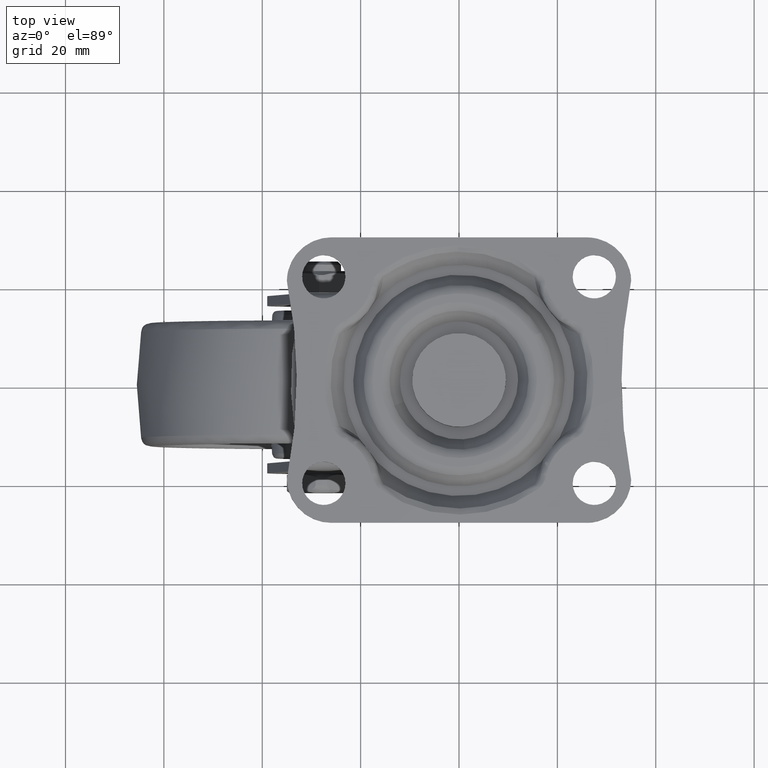
[diagram: clean part render]
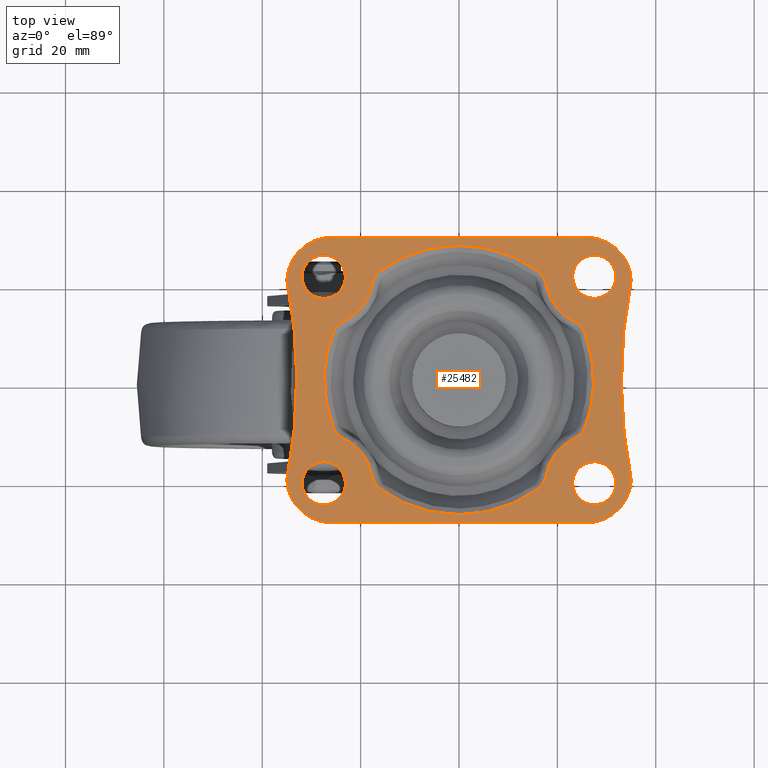
[diagram: same view with one face highlighted and labeled with its STEP entity id]
A machine part, top view. The second image highlights one B-rep face of the part: STEP entity #25482.
In plain terms, the highlighted face is a freeform B-spline surface patch.
Its self-contained STEP definition (entity closure, byte-faithful):
#13530=CARTESIAN_POINT('',(-26.953836778245702,16.634028559964811,-1.450307E-017));
#13531=VERTEX_POINT('',#13530);
#13537=CARTESIAN_POINT('',(-23.099999900000000,21.0,0.0));
#13538=VERTEX_POINT('',#13537);
#13539=CARTESIAN_POINT('',(-26.953836778245702,16.634028559964808,-1.450307E-017));
#13540=CARTESIAN_POINT('',(-23.099999900000007,17.116126071410257,0.0));
#13541=CARTESIAN_POINT('',(-23.099999900000000,21.0,0.0));
#13549=(BOUNDED_CURVE()B_SPLINE_CURVE(2,(#13539,#13540,#13541),.UNSPECIFIED.,.F.,.U.)B_SPLINE_CURVE_WITH_KNOTS((3,3),(0.271473928985399,0.500000000000000),.UNSPECIFIED.)CURVE()GEOMETRIC_REPRESENTATION_ITEM()RATIONAL_B_SPLINE_CURVE((0.954005430246196,0.732265053910968,1.0))REPRESENTATION_ITEM(''));
#13550=EDGE_CURVE('',#13531,#13538,#13549,.T.);
#13552=CARTESIAN_POINT('',(-27.538396757451380,25.399832561475169,-1.040834E-017));
#13553=VERTEX_POINT('',#13552);
#13554=CARTESIAN_POINT('',(-23.099999900000000,21.0,0.0));
#13555=CARTESIAN_POINT('',(-23.099999900000011,25.400000099999993,0.0));
#13556=CARTESIAN_POINT('',(-27.500000000000000,25.400000100000000,0.0));
#13557=CARTESIAN_POINT('',(-27.519198744433332,25.400000099999993,0.0));
#13558=CARTESIAN_POINT('',(-27.538396757451384,25.399832561475172,-1.040834E-017));
#13566=(BOUNDED_CURVE()B_SPLINE_CURVE(2,(#13554,#13555,#13556,#13557,#13558),.UNSPECIFIED.,.F.,.U.)B_SPLINE_CURVE_WITH_KNOTS((3,2,3),(0.500000000000000,0.750000000000000,0.751539894365884),.UNSPECIFIED.)CURVE()GEOMETRIC_REPRESENTATION_ITEM()RATIONAL_B_SPLINE_CURVE((1.0,0.707106781186548,1.0,0.998195901530174,0.996414028028901))REPRESENTATION_ITEM(''));
#13567=EDGE_CURVE('',#13538,#13553,#13566,.T.);
#13647=CARTESIAN_POINT('',(-31.900000099999989,21.0,0.0));
#13648=VERTEX_POINT('',#13647);
#13649=CARTESIAN_POINT('',(-27.538396757451380,25.399832561475176,-1.040834E-017));
#13650=CARTESIAN_POINT('',(-31.900000099999993,25.361769424983912,0.0));
#13651=CARTESIAN_POINT('',(-31.900000099999989,21.0,0.0));
#13659=(BOUNDED_CURVE()B_SPLINE_CURVE(2,(#13649,#13650,#13651),.UNSPECIFIED.,.F.,.U.)B_SPLINE_CURVE_WITH_KNOTS((3,3),(0.751539894365884,1.0),.UNSPECIFIED.)CURVE()GEOMETRIC_REPRESENTATION_ITEM()RATIONAL_B_SPLINE_CURVE((0.996414028028903,0.708910879656373,1.0))REPRESENTATION_ITEM(''));
#13660=EDGE_CURVE('',#13553,#13648,#13659,.T.);
#13662=CARTESIAN_POINT('',(-31.900000099999989,21.0,0.0));
#13663=CARTESIAN_POINT('',(-31.900000099999993,16.599999900000011,0.0));
#13664=CARTESIAN_POINT('',(-27.500000000000000,16.599999900000011,0.0));
#13665=CARTESIAN_POINT('',(-27.225858312429651,16.599999900000014,0.0));
#13666=CARTESIAN_POINT('',(-26.953836778245702,16.634028559964808,-1.450307E-017));
#13674=(BOUNDED_CURVE()B_SPLINE_CURVE(2,(#13662,#13663,#13664,#13665,#13666),.UNSPECIFIED.,.F.,.U.)B_SPLINE_CURVE_WITH_KNOTS((3,2,3),(0.0,0.250000000000000,0.271473928985399),.UNSPECIFIED.)CURVE()GEOMETRIC_REPRESENTATION_ITEM()RATIONAL_B_SPLINE_CURVE((1.0,0.707106781186548,1.0,0.974841727275580,0.954005430246196))REPRESENTATION_ITEM(''));
#13675=EDGE_CURVE('',#13648,#13531,#13674,.T.);
#13716=CARTESIAN_POINT('',(28.046153221754299,16.634028559964811,-1.450307E-017));
#13717=VERTEX_POINT('',#13716);
#13723=CARTESIAN_POINT('',(31.899990099999989,21.0,0.0));
#13724=VERTEX_POINT('',#13723);
#13725=CARTESIAN_POINT('',(28.046153221754292,16.634028559964808,-1.450307E-017));
#13726=CARTESIAN_POINT('',(31.899990099999986,17.116126071410257,0.0));
#13727=CARTESIAN_POINT('',(31.899990099999989,21.0,0.0));
#13735=(BOUNDED_CURVE()B_SPLINE_CURVE(2,(#13725,#13726,#13727),.UNSPECIFIED.,.F.,.U.)B_SPLINE_CURVE_WITH_KNOTS((3,3),(0.271473928985399,0.500000000000000),.UNSPECIFIED.)CURVE()GEOMETRIC_REPRESENTATION_ITEM()RATIONAL_B_SPLINE_CURVE((0.954005430246196,0.732265053910968,1.0))REPRESENTATION_ITEM(''));
#13736=EDGE_CURVE('',#13717,#13724,#13735,.T.);
#13738=CARTESIAN_POINT('',(27.461593242548620,25.399832561475179,-1.040834E-017));
#13739=VERTEX_POINT('',#13738);
#13740=CARTESIAN_POINT('',(31.899990099999989,21.0,0.0));
#13741=CARTESIAN_POINT('',(31.899990099999997,25.400000099999993,0.0));
#13742=CARTESIAN_POINT('',(27.499990000000000,25.400000100000000,0.0));
#13743=CARTESIAN_POINT('',(27.480791255566668,25.400000099999993,0.0));
#13744=CARTESIAN_POINT('',(27.461593242548624,25.399832561475179,-1.040834E-017));
#13752=(BOUNDED_CURVE()B_SPLINE_CURVE(2,(#13740,#13741,#13742,#13743,#13744),.UNSPECIFIED.,.F.,.U.)B_SPLINE_CURVE_WITH_KNOTS((3,2,3),(0.500000000000000,0.750000000000000,0.751539894365884),.UNSPECIFIED.)CURVE()GEOMETRIC_REPRESENTATION_ITEM()RATIONAL_B_SPLINE_CURVE((1.0,0.707106781186548,1.0,0.998195901530174,0.996414028028901))REPRESENTATION_ITEM(''));
#13753=EDGE_CURVE('',#13724,#13739,#13752,.T.);
#13833=CARTESIAN_POINT('',(23.099989900000001,21.0,0.0));
#13834=VERTEX_POINT('',#13833);
#13835=CARTESIAN_POINT('',(27.461593242548624,25.399832561475176,-1.040834E-017));
#13836=CARTESIAN_POINT('',(23.099989900000004,25.361769424983923,0.0));
#13837=CARTESIAN_POINT('',(23.099989900000001,21.0,0.0));
#13845=(BOUNDED_CURVE()B_SPLINE_CURVE(2,(#13835,#13836,#13837),.UNSPECIFIED.,.F.,.U.)B_SPLINE_CURVE_WITH_KNOTS((3,3),(0.751539894365883,1.0),.UNSPECIFIED.)CURVE()GEOMETRIC_REPRESENTATION_ITEM()RATIONAL_B_SPLINE_CURVE((0.996414028028903,0.708910879656373,1.0))REPRESENTATION_ITEM(''));
#13846=EDGE_CURVE('',#13739,#13834,#13845,.T.);
#13848=CARTESIAN_POINT('',(23.099989900000001,21.0,0.0));
#13849=CARTESIAN_POINT('',(23.099989900000004,16.599999900000011,0.0));
#13850=CARTESIAN_POINT('',(27.499990000000000,16.599999900000011,0.0));
#13851=CARTESIAN_POINT('',(27.774131687570346,16.599999900000014,0.0));
#13852=CARTESIAN_POINT('',(28.046153221754292,16.634028559964808,-1.450307E-017));
#13860=(BOUNDED_CURVE()B_SPLINE_CURVE(2,(#13848,#13849,#13850,#13851,#13852),.UNSPECIFIED.,.F.,.U.)B_SPLINE_CURVE_WITH_KNOTS((3,2,3),(0.0,0.250000000000000,0.271473928985399),.UNSPECIFIED.)CURVE()GEOMETRIC_REPRESENTATION_ITEM()RATIONAL_B_SPLINE_CURVE((1.0,0.707106781186548,1.0,0.974841727275580,0.954005430246196))REPRESENTATION_ITEM(''));
#13861=EDGE_CURVE('',#13834,#13717,#13860,.T.);
#14088=CARTESIAN_POINT('',(28.046153221754299,-25.365971440035189,-1.450307E-017));
#14089=VERTEX_POINT('',#14088);
#14095=CARTESIAN_POINT('',(31.899990099999989,-21.0,0.0));
#14096=VERTEX_POINT('',#14095);
#14097=CARTESIAN_POINT('',(28.046153221754292,-25.365971440035189,-1.450307E-017));
#14098=CARTESIAN_POINT('',(31.899990099999986,-24.883873928589743,0.0));
#14099=CARTESIAN_POINT('',(31.899990099999989,-21.0,0.0));
#14107=(BOUNDED_CURVE()B_SPLINE_CURVE(2,(#14097,#14098,#14099),.UNSPECIFIED.,.F.,.U.)B_SPLINE_CURVE_WITH_KNOTS((3,3),(0.271473928985399,0.500000000000000),.UNSPECIFIED.)CURVE()GEOMETRIC_REPRESENTATION_ITEM()RATIONAL_B_SPLINE_CURVE((0.954005430246196,0.732265053910968,1.0))REPRESENTATION_ITEM(''));
#14108=EDGE_CURVE('',#14089,#14096,#14107,.T.);
#14110=CARTESIAN_POINT('',(27.461593242548620,-16.600167438524831,-1.040834E-017));
#14111=VERTEX_POINT('',#14110);
#14112=CARTESIAN_POINT('',(31.899990099999989,-21.0,0.0));
#14113=CARTESIAN_POINT('',(31.899990099999997,-16.599999900000011,0.0));
#14114=CARTESIAN_POINT('',(27.499990000000000,-16.599999900000011,0.0));
#14115=CARTESIAN_POINT('',(27.480791255566668,-16.599999900000011,0.0));
#14116=CARTESIAN_POINT('',(27.461593242548624,-16.600167438524824,-1.040834E-017));
#14124=(BOUNDED_CURVE()B_SPLINE_CURVE(2,(#14112,#14113,#14114,#14115,#14116),.UNSPECIFIED.,.F.,.U.)B_SPLINE_CURVE_WITH_KNOTS((3,2,3),(0.500000000000000,0.750000000000000,0.751539894365884),.UNSPECIFIED.)CURVE()GEOMETRIC_REPRESENTATION_ITEM()RATIONAL_B_SPLINE_CURVE((1.0,0.707106781186548,1.0,0.998195901530174,0.996414028028901))REPRESENTATION_ITEM(''));
#14125=EDGE_CURVE('',#14096,#14111,#14124,.T.);
#14205=CARTESIAN_POINT('',(23.099989900000001,-21.0,0.0));
#14206=VERTEX_POINT('',#14205);
#14207=CARTESIAN_POINT('',(27.461593242548624,-16.600167438524828,-1.040834E-017));
#14208=CARTESIAN_POINT('',(23.099989900000004,-16.638230575016085,0.0));
#14209=CARTESIAN_POINT('',(23.099989900000001,-21.0,0.0));
#14217=(BOUNDED_CURVE()B_SPLINE_CURVE(2,(#14207,#14208,#14209),.UNSPECIFIED.,.F.,.U.)B_SPLINE_CURVE_WITH_KNOTS((3,3),(0.751539894365883,1.0),.UNSPECIFIED.)CURVE()GEOMETRIC_REPRESENTATION_ITEM()RATIONAL_B_SPLINE_CURVE((0.996414028028903,0.708910879656373,1.0))REPRESENTATION_ITEM(''));
#14218=EDGE_CURVE('',#14111,#14206,#14217,.T.);
#14220=CARTESIAN_POINT('',(23.099989900000001,-21.0,0.0));
#14221=CARTESIAN_POINT('',(23.099989900000004,-25.400000099999993,0.0));
#14222=CARTESIAN_POINT('',(27.499990000000000,-25.400000100000000,0.0));
#14223=CARTESIAN_POINT('',(27.774131687570346,-25.400000099999993,0.0));
#14224=CARTESIAN_POINT('',(28.046153221754292,-25.365971440035189,-1.450307E-017));
#14232=(BOUNDED_CURVE()B_SPLINE_CURVE(2,(#14220,#14221,#14222,#14223,#14224),.UNSPECIFIED.,.F.,.U.)B_SPLINE_CURVE_WITH_KNOTS((3,2,3),(0.0,0.250000000000000,0.271473928985399),.UNSPECIFIED.)CURVE()GEOMETRIC_REPRESENTATION_ITEM()RATIONAL_B_SPLINE_CURVE((1.0,0.707106781186548,1.0,0.974841727275580,0.954005430246196))REPRESENTATION_ITEM(''));
#14233=EDGE_CURVE('',#14206,#14089,#14232,.T.);
#14274=CARTESIAN_POINT('',(-26.953836778245702,-25.365971440035189,-1.450307E-017));
#14275=VERTEX_POINT('',#14274);
#14281=CARTESIAN_POINT('',(-23.099999900000000,-21.0,0.0));
#14282=VERTEX_POINT('',#14281);
#14283=CARTESIAN_POINT('',(-26.953836778245702,-25.365971440035189,-1.450307E-017));
#14284=CARTESIAN_POINT('',(-23.099999900000007,-24.883873928589743,0.0));
#14285=CARTESIAN_POINT('',(-23.099999900000000,-21.0,0.0));
#14293=(BOUNDED_CURVE()B_SPLINE_CURVE(2,(#14283,#14284,#14285),.UNSPECIFIED.,.F.,.U.)B_SPLINE_CURVE_WITH_KNOTS((3,3),(0.271473928985399,0.500000000000000),.UNSPECIFIED.)CURVE()GEOMETRIC_REPRESENTATION_ITEM()RATIONAL_B_SPLINE_CURVE((0.954005430246196,0.732265053910968,1.0))REPRESENTATION_ITEM(''));
#14294=EDGE_CURVE('',#14275,#14282,#14293,.T.);
#14296=CARTESIAN_POINT('',(-27.538396757451370,-16.600167438524831,-1.040834E-017));
#14297=VERTEX_POINT('',#14296);
#14298=CARTESIAN_POINT('',(-23.099999900000000,-21.0,0.0));
#14299=CARTESIAN_POINT('',(-23.099999900000011,-16.599999900000011,0.0));
#14300=CARTESIAN_POINT('',(-27.500000000000000,-16.599999900000011,0.0));
#14301=CARTESIAN_POINT('',(-27.519198744433332,-16.599999900000011,0.0));
#14302=CARTESIAN_POINT('',(-27.538396757451373,-16.600167438524824,-1.040834E-017));
#14310=(BOUNDED_CURVE()B_SPLINE_CURVE(2,(#14298,#14299,#14300,#14301,#14302),.UNSPECIFIED.,.F.,.U.)B_SPLINE_CURVE_WITH_KNOTS((3,2,3),(0.500000000000000,0.750000000000000,0.751539894365884),.UNSPECIFIED.)CURVE()GEOMETRIC_REPRESENTATION_ITEM()RATIONAL_B_SPLINE_CURVE((1.0,0.707106781186548,1.0,0.998195901530174,0.996414028028901))REPRESENTATION_ITEM(''));
#14311=EDGE_CURVE('',#14282,#14297,#14310,.T.);
#14391=CARTESIAN_POINT('',(-31.900000099999989,-21.0,0.0));
#14392=VERTEX_POINT('',#14391);
#14393=CARTESIAN_POINT('',(-27.538396757451370,-16.600167438524831,-1.040834E-017));
#14394=CARTESIAN_POINT('',(-31.900000099999993,-16.638230575016088,0.0));
#14395=CARTESIAN_POINT('',(-31.900000099999989,-21.0,0.0));
#14403=(BOUNDED_CURVE()B_SPLINE_CURVE(2,(#14393,#14394,#14395),.UNSPECIFIED.,.F.,.U.)B_SPLINE_CURVE_WITH_KNOTS((3,3),(0.751539894365883,1.0),.UNSPECIFIED.)CURVE()GEOMETRIC_REPRESENTATION_ITEM()RATIONAL_B_SPLINE_CURVE((0.996414028028903,0.708910879656373,1.0))REPRESENTATION_ITEM(''));
#14404=EDGE_CURVE('',#14297,#14392,#14403,.T.);
#14406=CARTESIAN_POINT('',(-31.900000099999989,-21.0,0.0));
#14407=CARTESIAN_POINT('',(-31.900000099999993,-25.400000099999993,0.0));
#14408=CARTESIAN_POINT('',(-27.500000000000000,-25.400000100000000,0.0));
#14409=CARTESIAN_POINT('',(-27.225858312429651,-25.400000099999993,0.0));
#14410=CARTESIAN_POINT('',(-26.953836778245702,-25.365971440035189,-1.450307E-017));
#14418=(BOUNDED_CURVE()B_SPLINE_CURVE(2,(#14406,#14407,#14408,#14409,#14410),.UNSPECIFIED.,.F.,.U.)B_SPLINE_CURVE_WITH_KNOTS((3,2,3),(0.0,0.250000000000000,0.271473928985399),.UNSPECIFIED.)CURVE()GEOMETRIC_REPRESENTATION_ITEM()RATIONAL_B_SPLINE_CURVE((1.0,0.707106781186548,1.0,0.974841727275580,0.954005430246196))REPRESENTATION_ITEM(''));
#14419=EDGE_CURVE('',#14392,#14275,#14418,.T.);
#21813=CARTESIAN_POINT('',(-34.996665220768847,20.244611880344650,0.0));
#21814=VERTEX_POINT('',#21813);
#21835=CARTESIAN_POINT('',(-34.996665220768747,-20.244611880344198,0.0));
#21836=VERTEX_POINT('',#21835);
#21842=CARTESIAN_POINT('',(-34.996665220768847,-20.244611880344181,0.0));
#21843=CARTESIAN_POINT('',(-30.957251078704829,2.146061E-013,0.0));
#21844=CARTESIAN_POINT('',(-34.996665220768939,20.244611880344610,0.0));
#21852=(BOUNDED_CURVE()B_SPLINE_CURVE(2,(#21842,#21843,#21844),.UNSPECIFIED.,.F.,.U.)CURVE()GEOMETRIC_REPRESENTATION_ITEM()QUASI_UNIFORM_CURVE()RATIONAL_B_SPLINE_CURVE((1.0,0.980669150357168,1.0))REPRESENTATION_ITEM(''));
#21853=EDGE_CURVE('',#21836,#21814,#21852,.T.);
#21874=CARTESIAN_POINT('',(-25.999990000000000,-29.0,0.0));
#21875=VERTEX_POINT('',#21874);
#21881=CARTESIAN_POINT('',(-34.996665220768762,-20.244611880344198,0.0));
#21882=CARTESIAN_POINT('',(-34.758613729685891,-29.000000000000004,0.0));
#21883=CARTESIAN_POINT('',(-25.999990000000000,-29.0,0.0));
#21891=(BOUNDED_CURVE()B_SPLINE_CURVE(2,(#21881,#21882,#21883),.UNSPECIFIED.,.F.,.U.)CURVE()GEOMETRIC_REPRESENTATION_ITEM()QUASI_UNIFORM_CURVE()RATIONAL_B_SPLINE_CURVE((1.0,0.716651623111265,1.0))REPRESENTATION_ITEM(''));
#21892=EDGE_CURVE('',#21836,#21875,#21891,.T.);
#21923=CARTESIAN_POINT('',(25.999993141592750,-28.999999999999449,0.0));
#21924=VERTEX_POINT('',#21923);
#21930=CARTESIAN_POINT('',(25.999993141592750,-28.999999999999449,0.0));
#21931=CARTESIAN_POINT('',(-25.999990000000000,-29.0,0.0));
#21932=QUASI_UNIFORM_CURVE('',1,(#21930,#21931),.UNSPECIFIED.,.F.,.U.);
#21933=EDGE_CURVE('',#21924,#21875,#21932,.T.);
#21955=CARTESIAN_POINT('',(34.996665220768847,-20.244611880344600,0.0));
#21956=VERTEX_POINT('',#21955);
#21962=CARTESIAN_POINT('',(25.999993141592750,-28.999999999999449,0.0));
#21963=CARTESIAN_POINT('',(34.758613812811845,-28.999996942663991,0.0));
#21964=CARTESIAN_POINT('',(34.996665220768847,-20.244611880344600,0.0));
#21972=(BOUNDED_CURVE()B_SPLINE_CURVE(2,(#21962,#21963,#21964),.UNSPECIFIED.,.F.,.U.)CURVE()GEOMETRIC_REPRESENTATION_ITEM()QUASI_UNIFORM_CURVE()RATIONAL_B_SPLINE_CURVE((1.0,0.716651744836003,1.0))REPRESENTATION_ITEM(''));
#21973=EDGE_CURVE('',#21924,#21956,#21972,.T.);
#22021=CARTESIAN_POINT('',(34.996665220768747,20.244611880344198,0.0));
#22022=VERTEX_POINT('',#22021);
#22028=CARTESIAN_POINT('',(34.996665220768747,20.244611880344198,0.0));
#22029=CARTESIAN_POINT('',(30.957251078704825,-1.627309E-013,0.0));
#22030=CARTESIAN_POINT('',(34.996665220768847,-20.244611880344600,0.0));
#22038=(BOUNDED_CURVE()B_SPLINE_CURVE(2,(#22028,#22029,#22030),.UNSPECIFIED.,.F.,.U.)CURVE()GEOMETRIC_REPRESENTATION_ITEM()QUASI_UNIFORM_CURVE()RATIONAL_B_SPLINE_CURVE((1.0,0.980669150357169,1.0))REPRESENTATION_ITEM(''));
#22039=EDGE_CURVE('',#22022,#21956,#22038,.T.);
#22061=CARTESIAN_POINT('',(25.999992827433399,28.999999999999549,0.0));
#22062=VERTEX_POINT('',#22061);
#22068=CARTESIAN_POINT('',(34.996665220768762,20.244611880344198,0.0));
#22069=CARTESIAN_POINT('',(34.758613804499589,28.999997248397619,0.0));
#22070=CARTESIAN_POINT('',(25.999992827433399,28.999999999999549,0.0));
#22078=(BOUNDED_CURVE()B_SPLINE_CURVE(2,(#22068,#22069,#22070),.UNSPECIFIED.,.F.,.U.)CURVE()GEOMETRIC_REPRESENTATION_ITEM()QUASI_UNIFORM_CURVE()RATIONAL_B_SPLINE_CURVE((1.0,0.716651732663513,1.0))REPRESENTATION_ITEM(''));
#22079=EDGE_CURVE('',#22022,#22062,#22078,.T.);
#22110=CARTESIAN_POINT('',(-25.999990000000000,29.0,0.0));
#22111=VERTEX_POINT('',#22110);
#22117=CARTESIAN_POINT('',(-25.999990000000000,29.0,0.0));
#22118=CARTESIAN_POINT('',(25.999992827433399,28.999999999999549,0.0));
#22119=QUASI_UNIFORM_CURVE('',1,(#22117,#22118),.UNSPECIFIED.,.F.,.U.);
#22120=EDGE_CURVE('',#22111,#22062,#22119,.T.);
#22141=CARTESIAN_POINT('',(-25.999990000000000,29.0,0.0));
#22142=CARTESIAN_POINT('',(-34.758613729685443,29.000000000000004,0.0));
#22143=CARTESIAN_POINT('',(-34.996665220768740,20.244611880344650,0.0));
#22151=(BOUNDED_CURVE()B_SPLINE_CURVE(2,(#22141,#22142,#22143),.UNSPECIFIED.,.F.,.U.)CURVE()GEOMETRIC_REPRESENTATION_ITEM()QUASI_UNIFORM_CURVE()RATIONAL_B_SPLINE_CURVE((1.0,0.716651623111283,1.0))REPRESENTATION_ITEM(''));
#22152=EDGE_CURVE('',#22111,#21814,#22151,.T.);
#22412=CARTESIAN_POINT('',(-25.591212590839000,-9.715728735231270,0.0));
#22413=VERTEX_POINT('',#22412);
#22414=CARTESIAN_POINT('',(-23.170474890031201,-12.096898613283740,0.0));
#22415=VERTEX_POINT('',#22414);
#22416=CARTESIAN_POINT('',(-25.591212590839000,-9.715728735231270,0.0));
#22417=CARTESIAN_POINT('',(-25.565182702811811,-9.784291415023242,0.0));
#22418=CARTESIAN_POINT('',(-25.536709832404579,-9.851804138086944,0.0));
#22419=CARTESIAN_POINT('',(-25.475167638890522,-9.984854098644947,0.0));
#22420=CARTESIAN_POINT('',(-25.442148249014270,-10.050258242234991,0.0));
#22421=CARTESIAN_POINT('',(-25.337513298018621,-10.242072836035240,0.0));
#22422=CARTESIAN_POINT('',(-25.260105726351600,-10.364643127830741,0.0));
#22423=CARTESIAN_POINT('',(-25.091959404021090,-10.600538227247069,0.0));
#22424=CARTESIAN_POINT('',(-25.001208519785379,-10.713854619951990,0.0));
#22425=CARTESIAN_POINT('',(-24.855984655612829,-10.877519853928630,0.0));
#22426=CARTESIAN_POINT('',(-24.805960628355969,-10.931105387296890,0.0));
#22427=CARTESIAN_POINT('',(-24.704089588477810,-11.035150971774550,0.0));
#22428=CARTESIAN_POINT('',(-24.652128740227010,-11.085748899533289,0.0));
#22429=CARTESIAN_POINT('',(-24.387568897670651,-11.332129838167329,0.0));
#22430=CARTESIAN_POINT('',(-24.160888674477789,-11.508344635965431,0.0));
#22431=CARTESIAN_POINT('',(-23.683304163680141,-11.827110859010650,0.0));
#22432=CARTESIAN_POINT('',(-23.432327257452599,-11.969561368585250,0.0));
#22433=CARTESIAN_POINT('',(-23.170474890031201,-12.096898613283740,0.0));
#22434=B_SPLINE_CURVE_WITH_KNOTS('',3,(#22416,#22417,#22418,#22419,#22420,#22421,#22422,#22423,#22424,#22425,#22426,#22427,#22428,#22429,#22430,#22431,#22432,#22433),.UNSPECIFIED.,.F.,.U.,(4,2,2,2,2,2,2,2,4),(0.0,0.062500000000000,0.124999999999999,0.249999999999999,0.375000000000000,0.437499999999999,0.499999999999999,0.749999999999999,1.0),.UNSPECIFIED.);
#22435=EDGE_CURVE('',#22413,#22415,#22434,.T.);
#22486=CARTESIAN_POINT('',(-25.591212590838950,9.715728735231290,0.0));
#22487=VERTEX_POINT('',#22486);
#22501=CARTESIAN_POINT('',(-25.591212590838989,-9.715728735231279,0.0));
#22502=CARTESIAN_POINT('',(-29.279798449032743,8.340550E-015,0.0));
#22503=CARTESIAN_POINT('',(-25.591212590838978,9.715728735231286,0.0));
#22511=(BOUNDED_CURVE()B_SPLINE_CURVE(2,(#22501,#22502,#22503),.UNSPECIFIED.,.F.,.U.)CURVE()GEOMETRIC_REPRESENTATION_ITEM()QUASI_UNIFORM_CURVE()RATIONAL_B_SPLINE_CURVE((1.0,0.934891886720673,1.0))REPRESENTATION_ITEM(''));
#22512=EDGE_CURVE('',#22413,#22487,#22511,.T.);
#22548=CARTESIAN_POINT('',(-17.771067118333800,-19.167551647649450,0.0));
#22549=VERTEX_POINT('',#22548);
#22579=CARTESIAN_POINT('',(-17.771067118333800,-19.167551647649450,0.0));
#22580=CARTESIAN_POINT('',(-18.692690706822237,-14.274418357936954,0.0));
#22581=CARTESIAN_POINT('',(-23.170474890031180,-12.096898613283710,0.0));
#22589=(BOUNDED_CURVE()B_SPLINE_CURVE(2,(#22579,#22580,#22581),.UNSPECIFIED.,.F.,.U.)CURVE()GEOMETRIC_REPRESENTATION_ITEM()QUASI_UNIFORM_CURVE()RATIONAL_B_SPLINE_CURVE((1.0,0.893371763774231,1.0))REPRESENTATION_ITEM(''));
#22590=EDGE_CURVE('',#22549,#22415,#22589,.T.);
#22665=CARTESIAN_POINT('',(-23.170474890031201,12.096898613283759,0.0));
#22666=VERTEX_POINT('',#22665);
#22680=CARTESIAN_POINT('',(-23.170474890031201,12.096898613283759,0.0));
#22681=CARTESIAN_POINT('',(-23.301308137076120,12.033275185480861,0.0));
#22682=CARTESIAN_POINT('',(-23.429871953215830,11.965630754009050,0.0));
#22683=CARTESIAN_POINT('',(-23.682141751739419,11.821734725581610,0.0));
#22684=CARTESIAN_POINT('',(-23.806060675906721,11.745342293971930,0.0));
#22685=CARTESIAN_POINT('',(-24.168370768676620,11.503008936132421,0.0));
#22686=CARTESIAN_POINT('',(-24.395879697373989,11.325207057278840,0.0));
#22687=CARTESIAN_POINT('',(-24.712081095606099,11.029485566275371,0.0));
#22688=CARTESIAN_POINT('',(-24.813276104857010,10.926042340020739,0.0));
#22689=CARTESIAN_POINT('',(-24.957844800936421,10.762513218145781,0.0));
#22690=CARTESIAN_POINT('',(-25.004802250918772,10.706611438570301,0.0));
#22691=CARTESIAN_POINT('',(-25.095126704138721,10.593076699941060,0.0));
#22692=CARTESIAN_POINT('',(-25.138624955480012,10.535300026765521,0.0));
#22693=CARTESIAN_POINT('',(-25.263909492382481,10.358809688479440,0.0));
#22694=CARTESIAN_POINT('',(-25.340512221157500,10.236951875750851,0.0));
#22695=CARTESIAN_POINT('',(-25.478182368915490,9.983813124572469,0.0));
#22696=CARTESIAN_POINT('',(-25.539270303388879,9.852544630035833,0.0));
#22697=CARTESIAN_POINT('',(-25.591212590838950,9.715728735231298,0.0));
#22698=B_SPLINE_CURVE_WITH_KNOTS('',3,(#22680,#22681,#22682,#22683,#22684,#22685,#22686,#22687,#22688,#22689,#22690,#22691,#22692,#22693,#22694,#22695,#22696,#22697),.UNSPECIFIED.,.F.,.U.,(4,2,2,2,2,2,2,2,4),(0.0,0.124999999999998,0.249999999999996,0.499999999999993,0.624999999999993,0.687499999999994,0.749999999999994,0.874999999999997,1.0),.UNSPECIFIED.);
#22699=EDGE_CURVE('',#22666,#22487,#22698,.T.);
#22790=CARTESIAN_POINT('',(-16.111335525958850,-22.129853463050551,0.0));
#22791=VERTEX_POINT('',#22790);
#22825=CARTESIAN_POINT('',(-17.771067118333800,-19.167551647649450,0.0));
#22826=CARTESIAN_POINT('',(-17.744138842717639,-19.310520689997940,0.0));
#22827=CARTESIAN_POINT('',(-17.712733893616001,-19.452359165389751,0.0));
#22828=CARTESIAN_POINT('',(-17.640341445214140,-19.733616079364690,0.0));
#22829=CARTESIAN_POINT('',(-17.599274151277669,-19.873277028605180,0.0));
#22830=CARTESIAN_POINT('',(-17.460893051625209,-20.286610708461641,0.0));
#22831=CARTESIAN_POINT('',(-17.349271435167459,-20.552908353025469,0.0));
#22832=CARTESIAN_POINT('',(-17.147245265765630,-20.935818200590241,0.0));
#22833=CARTESIAN_POINT('',(-17.074098304264091,-21.060679936035299,0.0));
#22834=CARTESIAN_POINT('',(-16.954406632243590,-21.243206058100679,0.0));
#22835=CARTESIAN_POINT('',(-16.912842030612559,-21.303226012780801,0.0));
#22836=CARTESIAN_POINT('',(-16.827097332981179,-21.420258019314051,0.0));
#22837=CARTESIAN_POINT('',(-16.782813153584740,-21.477434529247461,0.0));
#22838=CARTESIAN_POINT('',(-16.645539910350731,-21.644769855425810,0.0));
#22839=CARTESIAN_POINT('',(-16.548152761922921,-21.750755929510461,0.0));
#22840=CARTESIAN_POINT('',(-16.340197244253002,-21.950222216392451,0.0));
#22841=CARTESIAN_POINT('',(-16.229646281758050,-22.043718944076261,0.0));
#22842=CARTESIAN_POINT('',(-16.111335525958850,-22.129853463050551,0.0));
#22843=B_SPLINE_CURVE_WITH_KNOTS('',3,(#22825,#22826,#22827,#22828,#22829,#22830,#22831,#22832,#22833,#22834,#22835,#22836,#22837,#22838,#22839,#22840,#22841,#22842),.UNSPECIFIED.,.F.,.U.,(4,2,2,2,2,2,2,2,4),(0.0,0.124999999999998,0.249999999999996,0.499999999999993,0.624999999999992,0.687499999999993,0.749999999999993,0.874999999999997,1.0),.UNSPECIFIED.);
#22844=EDGE_CURVE('',#22549,#22791,#22843,.T.);
#23017=CARTESIAN_POINT('',(-17.771067118333800,19.167551647649400,0.0));
#23018=VERTEX_POINT('',#23017);
#23032=CARTESIAN_POINT('',(-23.170474890031180,12.096898613283710,0.0));
#23033=CARTESIAN_POINT('',(-18.692690706822269,14.274418357936947,0.0));
#23034=CARTESIAN_POINT('',(-17.771067118333800,19.167551647649400,0.0));
#23042=(BOUNDED_CURVE()B_SPLINE_CURVE(2,(#23032,#23033,#23034),.UNSPECIFIED.,.F.,.U.)CURVE()GEOMETRIC_REPRESENTATION_ITEM()QUASI_UNIFORM_CURVE()RATIONAL_B_SPLINE_CURVE((1.0,0.893371763774232,1.0))REPRESENTATION_ITEM(''));
#23043=EDGE_CURVE('',#22666,#23018,#23042,.T.);
#23079=CARTESIAN_POINT('',(16.111323922075801,-22.129861911093400,0.0));
#23080=VERTEX_POINT('',#23079);
#23110=CARTESIAN_POINT('',(16.111323922075819,-22.129861911093400,0.0));
#23111=CARTESIAN_POINT('',(-0.000008877180536,-33.859483297255878,0.0));
#23112=CARTESIAN_POINT('',(-16.111335525958850,-22.129853463050569,0.0));
#23120=(BOUNDED_CURVE()B_SPLINE_CURVE(2,(#23110,#23111,#23112),.UNSPECIFIED.,.F.,.U.)CURVE()GEOMETRIC_REPRESENTATION_ITEM()QUASI_UNIFORM_CURVE()RATIONAL_B_SPLINE_CURVE((1.0,0.808442520356912,1.0))REPRESENTATION_ITEM(''));
#23121=EDGE_CURVE('',#23080,#22791,#23120,.T.);
#23345=CARTESIAN_POINT('',(-16.111335525958850,22.129853463050551,0.0));
#23346=VERTEX_POINT('',#23345);
#23360=CARTESIAN_POINT('',(-16.111335525958850,22.129853463050551,0.0));
#23361=CARTESIAN_POINT('',(-16.170624707799870,22.086688789443699,0.0));
#23362=CARTESIAN_POINT('',(-16.228257719069600,22.041443810311339,0.0));
#23363=CARTESIAN_POINT('',(-16.340407669321571,21.947039773080480,0.0));
#23364=CARTESIAN_POINT('',(-16.394809359184190,21.897963931298200,0.0));
#23365=CARTESIAN_POINT('',(-16.552303355874830,21.746514426937789,0.0));
#23366=CARTESIAN_POINT('',(-16.650165915954840,21.639564308112199,0.0));
#23367=CARTESIAN_POINT('',(-16.833461561568669,21.415237782839490,0.0));
#23368=CARTESIAN_POINT('',(-16.918883334230092,21.297851886750561,0.0));
#23369=CARTESIAN_POINT('',(-17.038533801603329,21.114657877036279,0.0));
#23370=CARTESIAN_POINT('',(-17.077056429665632,21.052289457010389,0.0));
#23371=CARTESIAN_POINT('',(-17.150606485836111,20.926616939519580,0.0));
#23372=CARTESIAN_POINT('',(-17.185736950776828,20.863166719051339,0.0));
#23373=CARTESIAN_POINT('',(-17.353761585361450,20.543067985238871,0.0));
#23374=CARTESIAN_POINT('',(-17.464070335493201,20.277987698921379,0.0));
#23375=CARTESIAN_POINT('',(-17.645833935901020,19.733321871578479,0.0));
#23376=CARTESIAN_POINT('',(-17.717172310401331,19.453692846866709,0.0));
#23377=CARTESIAN_POINT('',(-17.771067118333800,19.167551647649400,0.0));
#23378=B_SPLINE_CURVE_WITH_KNOTS('',3,(#23360,#23361,#23362,#23363,#23364,#23365,#23366,#23367,#23368,#23369,#23370,#23371,#23372,#23373,#23374,#23375,#23376,#23377),.UNSPECIFIED.,.F.,.U.,(4,2,2,2,2,2,2,2,4),(0.0,0.062500000000000,0.125000000000001,0.250000000000002,0.375000000000003,0.437500000000003,0.500000000000003,0.750000000000001,1.0),.UNSPECIFIED.);
#23379=EDGE_CURVE('',#23346,#23018,#23378,.T.);
#23470=CARTESIAN_POINT('',(17.771055763994251,-19.167558838195500,0.0));
#23471=VERTEX_POINT('',#23470);
#23505=CARTESIAN_POINT('',(16.111323922075801,-22.129861911093400,0.0));
#23506=CARTESIAN_POINT('',(16.170613150160559,-22.086697251386038,0.0));
#23507=CARTESIAN_POINT('',(16.228246204613210,-22.041452283199039,0.0));
#23508=CARTESIAN_POINT('',(16.340396235693110,-21.947048262578221,0.0));
#23509=CARTESIAN_POINT('',(16.394797982309161,-21.897972409191969,0.0));
#23510=CARTESIAN_POINT('',(16.552292114994039,-21.746522880168619,0.0));
#23511=CARTESIAN_POINT('',(16.650154745030282,-21.639572739587990,0.0));
#23512=CARTESIAN_POINT('',(16.833450499145300,-21.415246165463561,0.0));
#23513=CARTESIAN_POINT('',(16.918872310259651,-21.297860242219851,0.0));
#23514=CARTESIAN_POINT('',(17.038522815573270,-21.114666189551489,0.0));
#23515=CARTESIAN_POINT('',(17.077045461900418,-21.052297740867591,0.0));
#23516=CARTESIAN_POINT('',(17.150595555942999,-20.926625147246099,0.0));
#23517=CARTESIAN_POINT('',(17.185726035253872,-20.863174888550070,0.0));
#23518=CARTESIAN_POINT('',(17.353750721159638,-20.543075963086910,0.0));
#23519=CARTESIAN_POINT('',(17.464059448483429,-20.277995522215360,0.0));
#23520=CARTESIAN_POINT('',(17.645822898112460,-19.733329382937701,0.0));
#23521=CARTESIAN_POINT('',(17.717161144271131,-19.453700200816019,0.0));
#23522=CARTESIAN_POINT('',(17.771055763994251,-19.167558838195500,0.0));
#23523=B_SPLINE_CURVE_WITH_KNOTS('',3,(#23505,#23506,#23507,#23508,#23509,#23510,#23511,#23512,#23513,#23514,#23515,#23516,#23517,#23518,#23519,#23520,#23521,#23522),.UNSPECIFIED.,.F.,.U.,(4,2,2,2,2,2,2,2,4),(0.0,0.062499999999999,0.124999999999998,0.249999999999997,0.374999999999997,0.437499999999997,0.499999999999997,0.749999999999998,1.0),.UNSPECIFIED.);
#23524=EDGE_CURVE('',#23080,#23471,#23523,.T.);
#23701=CARTESIAN_POINT('',(16.111323922075901,22.129861911093300,0.0));
#23702=VERTEX_POINT('',#23701);
#23716=CARTESIAN_POINT('',(-16.111335525958850,22.129853463050541,0.0));
#23717=CARTESIAN_POINT('',(-0.000008877180459,33.859483297255920,0.0));
#23718=CARTESIAN_POINT('',(16.111323922075911,22.129861911093300,0.0));
#23726=(BOUNDED_CURVE()B_SPLINE_CURVE(2,(#23716,#23717,#23718),.UNSPECIFIED.,.F.,.U.)CURVE()GEOMETRIC_REPRESENTATION_ITEM()QUASI_UNIFORM_CURVE()RATIONAL_B_SPLINE_CURVE((1.0,0.808442520356911,1.0))REPRESENTATION_ITEM(''));
#23727=EDGE_CURVE('',#23346,#23702,#23726,.T.);
#23763=CARTESIAN_POINT('',(23.170474593460099,-12.096893894570639,0.0));
#23764=VERTEX_POINT('',#23763);
#23794=CARTESIAN_POINT('',(23.170474593460099,-12.096893894570631,0.0));
#23795=CARTESIAN_POINT('',(18.692677835663901,-14.274413719748329,0.0));
#23796=CARTESIAN_POINT('',(17.771055763994259,-19.167558838195500,0.0));
#23804=(BOUNDED_CURVE()B_SPLINE_CURVE(2,(#23794,#23795,#23796),.UNSPECIFIED.,.F.,.U.)CURVE()GEOMETRIC_REPRESENTATION_ITEM()QUASI_UNIFORM_CURVE()RATIONAL_B_SPLINE_CURVE((1.0,0.893371352876438,1.0))REPRESENTATION_ITEM(''));
#23805=EDGE_CURVE('',#23764,#23471,#23804,.T.);
#24033=CARTESIAN_POINT('',(17.771055763994301,19.167558838195450,0.0));
#24034=VERTEX_POINT('',#24033);
#24048=CARTESIAN_POINT('',(17.771055763994301,19.167558838195450,0.0));
#24049=CARTESIAN_POINT('',(17.744130387980530,19.310513066673789,0.0));
#24050=CARTESIAN_POINT('',(17.712731045205249,19.452327241324429,0.0));
#24051=CARTESIAN_POINT('',(17.640359783095679,19.733516311764561,0.0));
#24052=CARTESIAN_POINT('',(17.599334489842601,19.873058538176871,0.0));
#24053=CARTESIAN_POINT('',(17.460898283605129,20.286596378560908,0.0));
#24054=CARTESIAN_POINT('',(17.349252672206529,20.552920835662832,0.0));
#24055=CARTESIAN_POINT('',(17.147295601975529,20.935715530341529,0.0));
#24056=CARTESIAN_POINT('',(17.074189564026518,21.060512933638119,0.0));
#24057=CARTESIAN_POINT('',(16.954604764689648,21.242905128087109,0.0));
#24058=CARTESIAN_POINT('',(16.913021243748862,21.302966338437720,0.0));
#24059=CARTESIAN_POINT('',(16.827224480088589,21.420086092616209,0.0));
#24060=CARTESIAN_POINT('',(16.782915800657239,21.477300006293639,0.0));
#24061=CARTESIAN_POINT('',(16.645575942337889,21.644729274543401,0.0));
#24062=CARTESIAN_POINT('',(16.548153367377189,21.750753557362120,0.0));
#24063=CARTESIAN_POINT('',(16.340160645410439,21.950254309749329,0.0));
#24064=CARTESIAN_POINT('',(16.229607659383721,22.043747157456941,0.0));
#24065=CARTESIAN_POINT('',(16.111323922075901,22.129861911093300,0.0));
#24066=B_SPLINE_CURVE_WITH_KNOTS('',3,(#24048,#24049,#24050,#24051,#24052,#24053,#24054,#24055,#24056,#24057,#24058,#24059,#24060,#24061,#24062,#24063,#24064,#24065),.UNSPECIFIED.,.F.,.U.,(4,2,2,2,2,2,2,2,4),(0.0,0.124999999999999,0.249999999999999,0.499999999999997,0.624999999999999,0.687499999999999,0.749999999999999,0.875000000000000,1.0),.UNSPECIFIED.);
#24067=EDGE_CURVE('',#24034,#23702,#24066,.T.);
#24158=CARTESIAN_POINT('',(25.591214277004749,-9.715724293872340,0.0));
#24159=VERTEX_POINT('',#24158);
#24193=CARTESIAN_POINT('',(23.170474593460099,-12.096893894570639,0.0));
#24194=CARTESIAN_POINT('',(23.301253107874881,-12.033297259160690,0.0));
#24195=CARTESIAN_POINT('',(23.430158319713549,-11.965465405279421,0.0));
#24196=CARTESIAN_POINT('',(23.682023547071850,-11.821795399263390,0.0));
#24197=CARTESIAN_POINT('',(23.805013838790860,-11.745967941279449,0.0));
#24198=CARTESIAN_POINT('',(24.164558156782530,-11.505694613254610,0.0));
#24199=CARTESIAN_POINT('',(24.391832917755259,-11.328657650389280,0.0));
#24200=CARTESIAN_POINT('',(24.709717150324028,-11.031855493230131,0.0));
#24201=CARTESIAN_POINT('',(24.812073407072500,-10.927277518145459,0.0));
#24202=CARTESIAN_POINT('',(25.004047516359840,-10.710369075641919,0.0));
#24203=CARTESIAN_POINT('',(25.094140199827208,-10.597660338657940,0.0));
#24204=CARTESIAN_POINT('',(25.261270482721059,-10.362819796685629,0.0));
#24205=CARTESIAN_POINT('',(25.338320741540901,-10.240697129158530,0.0));
#24206=CARTESIAN_POINT('',(25.442606136294248,-10.049364089840720,0.0));
#24207=CARTESIAN_POINT('',(25.475551765209360,-9.984058094639369,0.0));
#24208=CARTESIAN_POINT('',(25.536877103542530,-9.851406303254295,0.0));
#24209=CARTESIAN_POINT('',(25.565258696333029,-9.784091283977158,0.0));
#24210=CARTESIAN_POINT('',(25.591214277004749,-9.715724293872340,0.0));
#24211=B_SPLINE_CURVE_WITH_KNOTS('',3,(#24193,#24194,#24195,#24196,#24197,#24198,#24199,#24200,#24201,#24202,#24203,#24204,#24205,#24206,#24207,#24208,#24209,#24210),.UNSPECIFIED.,.F.,.U.,(4,2,2,2,2,2,2,2,4),(0.0,0.124999999999999,0.249999999999998,0.499999999999999,0.625000000000000,0.750000000000001,0.875000000000002,0.937500000000001,1.0),.UNSPECIFIED.);
#24212=EDGE_CURVE('',#23764,#24159,#24211,.T.);
#24385=CARTESIAN_POINT('',(23.170474593460050,12.096893894570661,0.0));
#24386=VERTEX_POINT('',#24385);
#24400=CARTESIAN_POINT('',(17.771055763994269,19.167558838195450,0.0));
#24401=CARTESIAN_POINT('',(18.692677835663929,14.274413719748352,0.0));
#24402=CARTESIAN_POINT('',(23.170474593460050,12.096893894570661,0.0));
#24410=(BOUNDED_CURVE()B_SPLINE_CURVE(2,(#24400,#24401,#24402),.UNSPECIFIED.,.F.,.U.)CURVE()GEOMETRIC_REPRESENTATION_ITEM()QUASI_UNIFORM_CURVE()RATIONAL_B_SPLINE_CURVE((1.0,0.893371352876441,1.0))REPRESENTATION_ITEM(''));
#24411=EDGE_CURVE('',#24034,#24386,#24410,.T.);
#24447=CARTESIAN_POINT('',(25.591214277004749,9.715724293872350,0.0));
#24448=VERTEX_POINT('',#24447);
#24478=CARTESIAN_POINT('',(25.591214277004770,9.715724293872357,0.0));
#24479=CARTESIAN_POINT('',(29.279796519831802,1.007527E-014,0.0));
#24480=CARTESIAN_POINT('',(25.591214277004781,-9.715724293872345,0.0));
#24488=(BOUNDED_CURVE()B_SPLINE_CURVE(2,(#24478,#24479,#24480),.UNSPECIFIED.,.F.,.U.)CURVE()GEOMETRIC_REPRESENTATION_ITEM()QUASI_UNIFORM_CURVE()RATIONAL_B_SPLINE_CURVE((1.0,0.934891948319267,1.0))REPRESENTATION_ITEM(''));
#24489=EDGE_CURVE('',#24448,#24159,#24488,.T.);
#24730=CARTESIAN_POINT('',(25.591214277004749,9.715724293872350,0.0));
#24731=CARTESIAN_POINT('',(25.565184390511021,9.784287005484867,0.0));
#24732=CARTESIAN_POINT('',(25.536711518349691,9.851799757337160,0.0));
#24733=CARTESIAN_POINT('',(25.475169315467959,9.984849769907864,0.0));
#24734=CARTESIAN_POINT('',(25.442149906397031,10.050253959720679,0.0));
#24735=CARTESIAN_POINT('',(25.337514900128269,10.242068654503671,0.0));
#24736=CARTESIAN_POINT('',(25.260107282896069,10.364638992360170,0.0));
#24737=CARTESIAN_POINT('',(25.091960859254431,10.600534150325570,0.0));
#24738=CARTESIAN_POINT('',(25.001209919195460,10.713850555440830,0.0));
#24739=CARTESIAN_POINT('',(24.855985966160372,10.877515786384119,0.0));
#24740=CARTESIAN_POINT('',(24.805961897268169,10.931101327370021,0.0));
#24741=CARTESIAN_POINT('',(24.704090757418459,11.035146932692591,0.0));
#24742=CARTESIAN_POINT('',(24.652129858322770,11.085744866152099,0.0));
#24743=CARTESIAN_POINT('',(24.387569757960939,11.332125811951380,0.0));
#24744=CARTESIAN_POINT('',(24.160889317845651,11.508340548921870,0.0));
#24745=CARTESIAN_POINT('',(23.683304354594931,11.827106541106540,0.0));
#24746=CARTESIAN_POINT('',(23.432327212746390,11.969556880272730,0.0));
#24747=CARTESIAN_POINT('',(23.170474593460050,12.096893894570661,0.0));
#24748=B_SPLINE_CURVE_WITH_KNOTS('',3,(#24730,#24731,#24732,#24733,#24734,#24735,#24736,#24737,#24738,#24739,#24740,#24741,#24742,#24743,#24744,#24745,#24746,#24747),.UNSPECIFIED.,.F.,.U.,(4,2,2,2,2,2,2,2,4),(0.0,0.062500000000001,0.125000000000001,0.250000000000002,0.375000000000004,0.437500000000004,0.500000000000004,0.750000000000002,1.0),.UNSPECIFIED.);
#24749=EDGE_CURVE('',#24448,#24386,#24748,.T.);
#25425=CARTESIAN_POINT('',(-38.492833254757620,31.897099887584751,0.0));
#25426=CARTESIAN_POINT('',(38.492833880546762,31.897099887584751,0.0));
#25427=CARTESIAN_POINT('',(-38.492833254757620,-31.897101443265981,0.0));
#25428=CARTESIAN_POINT('',(38.492833880546762,-31.897101443265981,0.0));
#25429=B_SPLINE_SURFACE_WITH_KNOTS('',1,1,((#25425,#25427),(#25426,#25428)),.UNSPECIFIED.,.F.,.F.,.U.,(2,2),(2,2),(0.0,76.985667135304368),(0.0,63.794201330850733),.UNSPECIFIED.);
#25430=ORIENTED_EDGE('',*,*,#22152,.T.);
#25431=ORIENTED_EDGE('',*,*,#21853,.F.);
#25432=ORIENTED_EDGE('',*,*,#21892,.T.);
#25433=ORIENTED_EDGE('',*,*,#21933,.F.);
#25434=ORIENTED_EDGE('',*,*,#21973,.T.);
#25435=ORIENTED_EDGE('',*,*,#22039,.F.);
#25436=ORIENTED_EDGE('',*,*,#22079,.T.);
#25437=ORIENTED_EDGE('',*,*,#22120,.F.);
#25438=EDGE_LOOP('',(#25430,#25431,#25432,#25433,#25434,#25435,#25436,#25437));
#25439=FACE_OUTER_BOUND('',#25438,.T.);
#25440=ORIENTED_EDGE('',*,*,#24212,.F.);
#25441=ORIENTED_EDGE('',*,*,#23805,.T.);
#25442=ORIENTED_EDGE('',*,*,#23524,.F.);
#25443=ORIENTED_EDGE('',*,*,#23121,.T.);
#25444=ORIENTED_EDGE('',*,*,#22844,.F.);
#25445=ORIENTED_EDGE('',*,*,#22590,.T.);
#25446=ORIENTED_EDGE('',*,*,#22435,.F.);
#25447=ORIENTED_EDGE('',*,*,#22512,.T.);
#25448=ORIENTED_EDGE('',*,*,#22699,.F.);
#25449=ORIENTED_EDGE('',*,*,#23043,.T.);
#25450=ORIENTED_EDGE('',*,*,#23379,.F.);
#25451=ORIENTED_EDGE('',*,*,#23727,.T.);
#25452=ORIENTED_EDGE('',*,*,#24067,.F.);
#25453=ORIENTED_EDGE('',*,*,#24411,.T.);
#25454=ORIENTED_EDGE('',*,*,#24749,.F.);
#25455=ORIENTED_EDGE('',*,*,#24489,.T.);
#25456=EDGE_LOOP('',(#25440,#25441,#25442,#25443,#25444,#25445,#25446,#25447,#25448,#25449,#25450,#25451,#25452,#25453,#25454,#25455));
#25457=FACE_BOUND('',#25456,.T.);
#25458=ORIENTED_EDGE('',*,*,#14311,.F.);
#25459=ORIENTED_EDGE('',*,*,#14294,.F.);
#25460=ORIENTED_EDGE('',*,*,#14419,.F.);
#25461=ORIENTED_EDGE('',*,*,#14404,.F.);
#25462=EDGE_LOOP('',(#25458,#25459,#25460,#25461));
#25463=FACE_BOUND('',#25462,.T.);
#25464=ORIENTED_EDGE('',*,*,#14125,.F.);
#25465=ORIENTED_EDGE('',*,*,#14108,.F.);
#25466=ORIENTED_EDGE('',*,*,#14233,.F.);
#25467=ORIENTED_EDGE('',*,*,#14218,.F.);
#25468=EDGE_LOOP('',(#25464,#25465,#25466,#25467));
#25469=FACE_BOUND('',#25468,.T.);
#25470=ORIENTED_EDGE('',*,*,#13753,.F.);
#25471=ORIENTED_EDGE('',*,*,#13736,.F.);
#25472=ORIENTED_EDGE('',*,*,#13861,.F.);
#25473=ORIENTED_EDGE('',*,*,#13846,.F.);
#25474=EDGE_LOOP('',(#25470,#25471,#25472,#25473));
#25475=FACE_BOUND('',#25474,.T.);
#25476=ORIENTED_EDGE('',*,*,#13567,.F.);
#25477=ORIENTED_EDGE('',*,*,#13550,.F.);
#25478=ORIENTED_EDGE('',*,*,#13675,.F.);
#25479=ORIENTED_EDGE('',*,*,#13660,.F.);
#25480=EDGE_LOOP('',(#25476,#25477,#25478,#25479));
#25481=FACE_BOUND('',#25480,.T.);
#25482=ADVANCED_FACE('',(#25439,#25457,#25463,#25469,#25475,#25481),#25429,.F.);